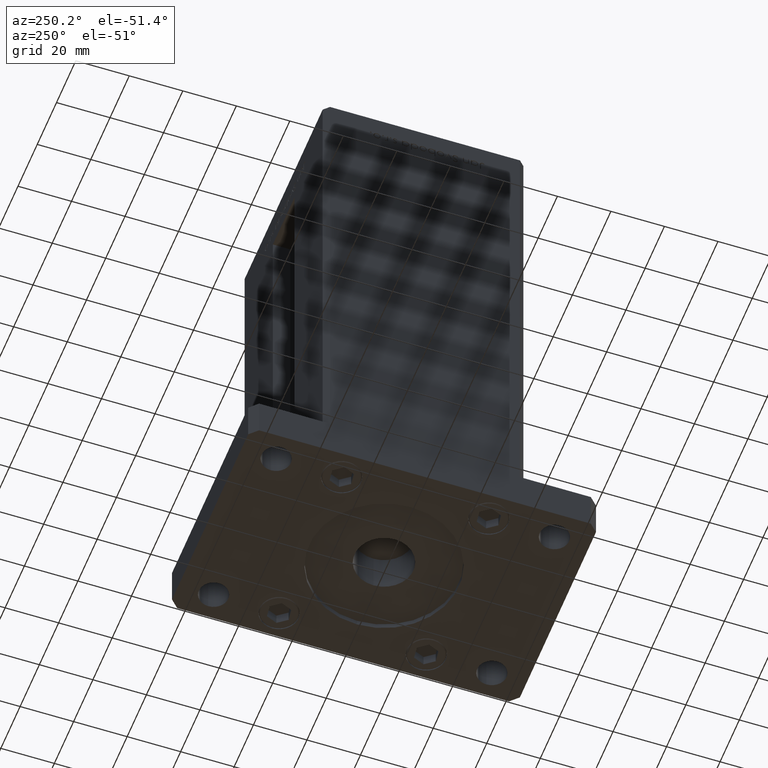
[diagram: clean part render]
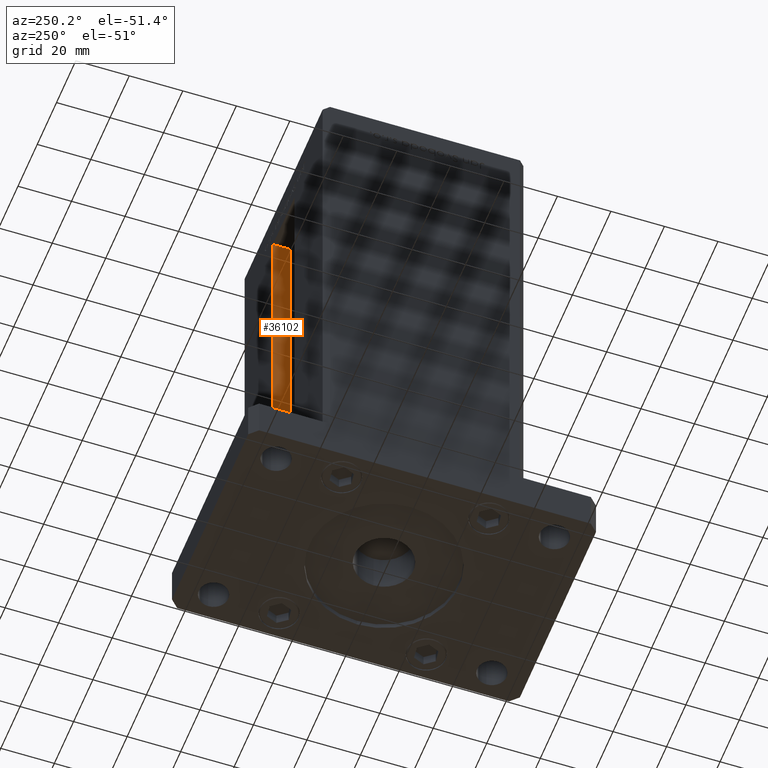
[diagram: same view with one face highlighted and labeled with its STEP entity id]
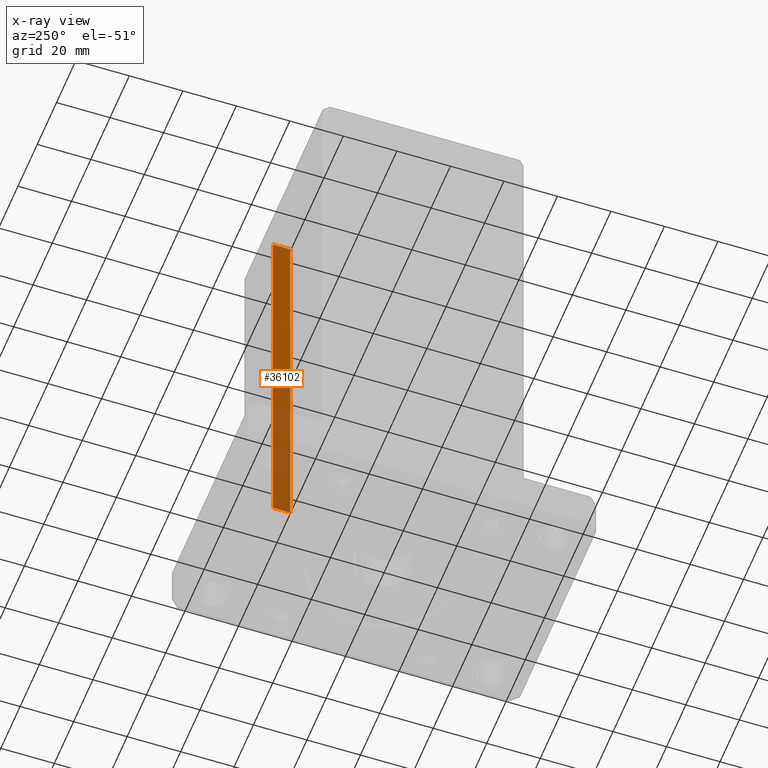
[diagram: x-ray of the same camera — body ghosted, the highlighted face saturated]
A machine part, auxiliary view. The second image highlights one B-rep face of the part: STEP entity #36102.
The next image is the same camera in x-ray: the body ghosted, the highlighted face saturated — about 38% of this face is hidden behind the body in this view.
In plain terms, the highlighted planar face has unit normal (1, 0, 0).
Its self-contained STEP definition (entity closure, byte-faithful):
#720 = LINE ( 'NONE', #21069, #41732 ) ;
#3770 = FACE_OUTER_BOUND ( 'NONE', #4273, .T. ) ;
#4273 = EDGE_LOOP ( 'NONE', ( #8809, #52664, #8012, #19643 ) ) ;
#4378 = EDGE_CURVE ( 'NONE', #16620, #35608, #23104, .T. ) ;
#6853 = DIRECTION ( 'NONE',  ( -0.000000000000000000, -0.000000000000000000, 1.000000000000000000 ) ) ;
#7394 = CARTESIAN_POINT ( 'NONE',  ( 11.25000000000000000, 30.99999999999999289, 0.000000000000000000 ) ) ;
#7882 = VECTOR ( 'NONE', #42746, 1000.000000000000000 ) ;
#8012 = ORIENTED_EDGE ( 'NONE', *, *, #4378, .T. ) ;
#8809 = ORIENTED_EDGE ( 'NONE', *, *, #33634, .F. ) ;
#11292 = EDGE_CURVE ( 'NONE', #16620, #50798, #51430, .T. ) ;
#14750 = AXIS2_PLACEMENT_3D ( 'NONE', #28972, #53213, #45584 ) ;
#16620 = VERTEX_POINT ( 'NONE', #29246 ) ;
#19417 = CARTESIAN_POINT ( 'NONE',  ( 11.25000000000000000, 37.50000000000000000, 0.000000000000000000 ) ) ;
#19643 = ORIENTED_EDGE ( 'NONE', *, *, #38253, .F. ) ;
#19669 = VERTEX_POINT ( 'NONE', #37926 ) ;
#21069 = CARTESIAN_POINT ( 'NONE',  ( 11.25000000000000000, 0.000000000000000000, 148.5000000000000000 ) ) ;
#22090 = CARTESIAN_POINT ( 'NONE',  ( 11.25000000000000000, 30.99999999999999289, 148.5000000000000000 ) ) ;
#23104 = LINE ( 'NONE', #7394, #31947 ) ;
#23475 = DIRECTION ( 'NONE',  ( -0.000000000000000000, -0.000000000000000000, 1.000000000000000000 ) ) ;
#28972 = CARTESIAN_POINT ( 'NONE',  ( 11.25000000000000000, 30.99999999999999289, 0.000000000000000000 ) ) ;
#29246 = CARTESIAN_POINT ( 'NONE',  ( 11.25000000000000000, 30.99999999999999289, 0.000000000000000000 ) ) ;
#30195 = CARTESIAN_POINT ( 'NONE',  ( 11.25000000000000000, 30.99999999999999289, 0.000000000000000000 ) ) ;
#31947 = VECTOR ( 'NONE', #6853, 1000.000000000000000 ) ;
#33634 = EDGE_CURVE ( 'NONE', #50798, #19669, #44431, .T. ) ;
#35469 = VECTOR ( 'NONE', #23475, 1000.000000000000000 ) ;
#35608 = VERTEX_POINT ( 'NONE', #22090 ) ;
#36102 = ADVANCED_FACE ( 'NONE', ( #3770 ), #41517, .F. ) ;
#37926 = CARTESIAN_POINT ( 'NONE',  ( 11.24999999999999289, 37.50000000000000000, 148.5000000000000000 ) ) ;
#38253 = EDGE_CURVE ( 'NONE', #19669, #35608, #720, .T. ) ;
#39277 = CARTESIAN_POINT ( 'NONE',  ( 11.25000000000000000, 37.50000000000000000, 0.000000000000000000 ) ) ;
#41517 = PLANE ( 'NONE',  #14750 ) ;
#41732 = VECTOR ( 'NONE', #45290, 1000.000000000000000 ) ;
#42746 = DIRECTION ( 'NONE',  ( 0.000000000000000000, 1.000000000000000000, 0.000000000000000000 ) ) ;
#44431 = LINE ( 'NONE', #19417, #35469 ) ;
#45290 = DIRECTION ( 'NONE',  ( -0.000000000000000000, -1.000000000000000000, 0.000000000000000000 ) ) ;
#45584 = DIRECTION ( 'NONE',  ( 0.000000000000000000, 0.000000000000000000, -1.000000000000000000 ) ) ;
#50798 = VERTEX_POINT ( 'NONE', #39277 ) ;
#51430 = LINE ( 'NONE', #30195, #7882 ) ;
#52664 = ORIENTED_EDGE ( 'NONE', *, *, #11292, .F. ) ;
#53213 = DIRECTION ( 'NONE',  ( 1.000000000000000000, -0.000000000000000000, 0.000000000000000000 ) ) ;